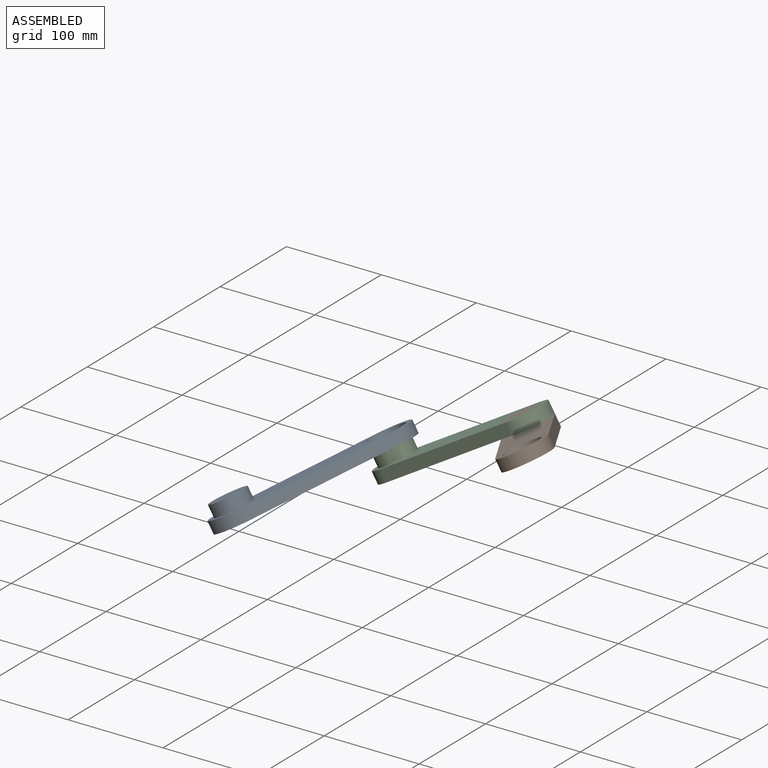
[diagram: assembled view]
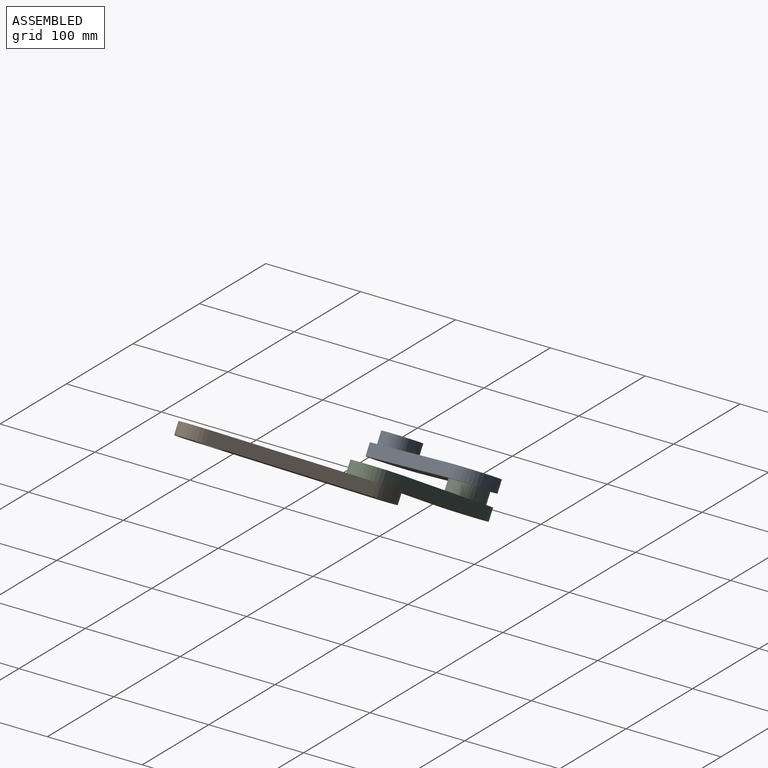
[diagram: assembled view, second angle]
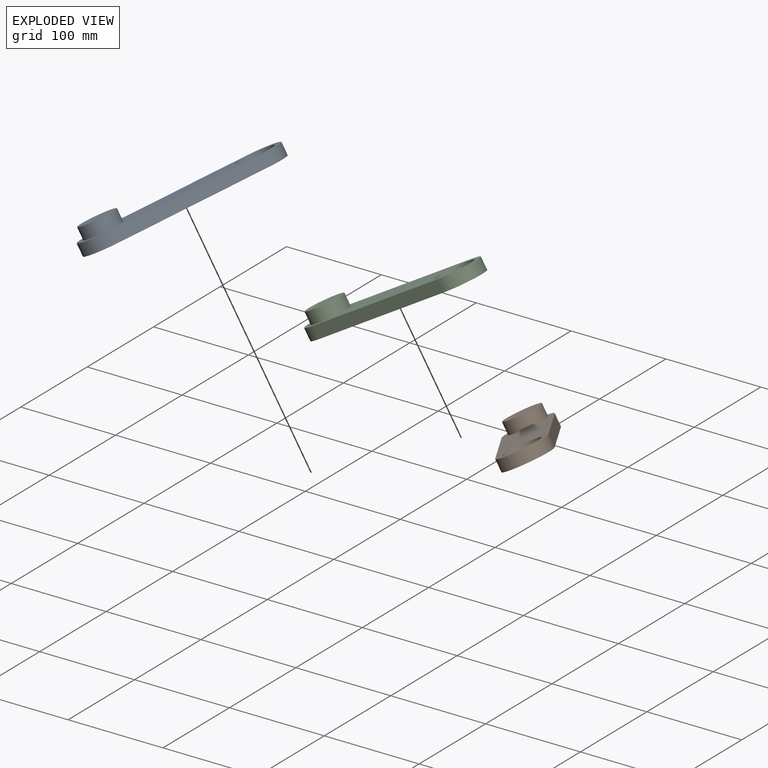
[diagram: exploded view]
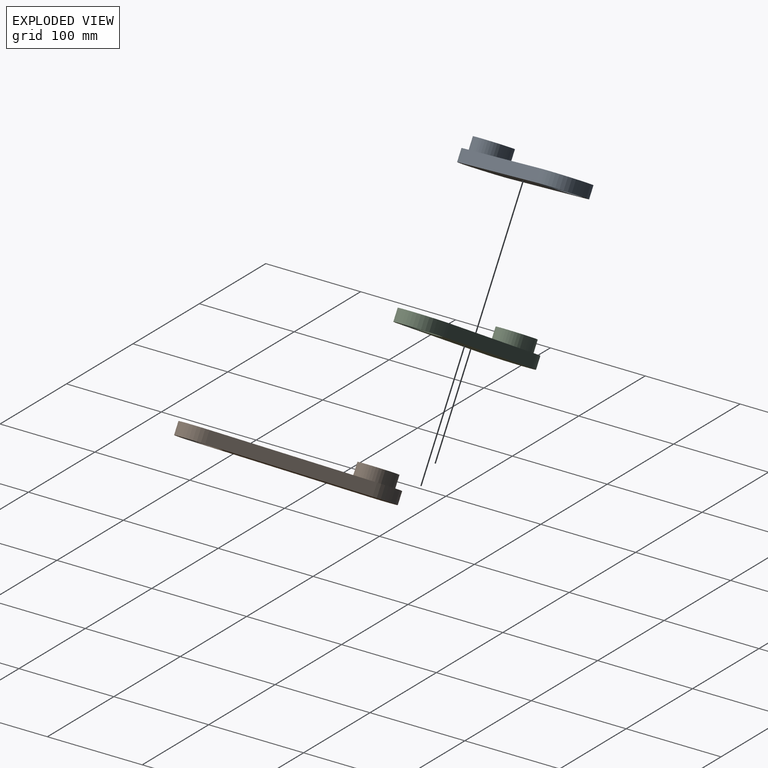
[diagram: exploded view, second angle]
ASSEMBLY  parts=3 mates=2
PART A: 9 faces, bbox 203.2x50.8x25.4 mm
  f0: cylinder r=25.4mm len=50.8mm, axis (0,0,-1), area 1013.4mm2, adj f1,f3,f4,f5
  f1: plane 152.4x12.7mm, normal (0,1,0), area 1935.5mm2, adj f0,f2,f4,f5
  f2: cylinder r=25.4mm len=50.8mm, axis (0,0,-1), area 1013.4mm2, adj f1,f3,f4,f5
  f3: plane 152.4x12.7mm, normal (0,-1,0), area 1935.5mm2, adj f0,f2,f4,f5
  f4: plane 203.2x50.8mm, normal (0,0,1), area 7488.6mm2, adj f0,f1,f2,f3,f6,f8
  f5: plane 203.2x50.8mm, normal (0,0,-1), area 8628.7mm2, adj f0,f1,f2,f3,f8
  f6: cylinder r=19.05mm len=38.1mm, axis (0,0,-1), area 1520.1mm2, adj f4,f7
  f7: plane 38.1x38.1mm, normal (0,0,1), area 1140.1mm2, adj f6
  f8: cylinder r=19.05mm len=38.1mm, axis (0,0,1), area 1520.1mm2, adj f4,f5
PART B: same geometry as A
PART C: same geometry as A
PLACE A rot(axis=(-0.24,-0.44,0.87),64.9deg) t=(-38.22,-71.93,107.32)mm
PLACE B rot(axis=(0.24,-0.47,-0.85),60.9deg) t=(185.98,-68.37,198.57)mm
PLACE C rot(axis=(0,-1,0),31.2deg) t=(74.97,-7.54,146.19)mm
MATE revolute A.f8 <-> C.f6  axis (0.52,0,-0.86) through (-3.36,-7.54,128.43)mm
MATE revolute B.f6 <-> C.f8  axis (-0.52,0,0.86) through (133.57,-7.54,196.53)mm
